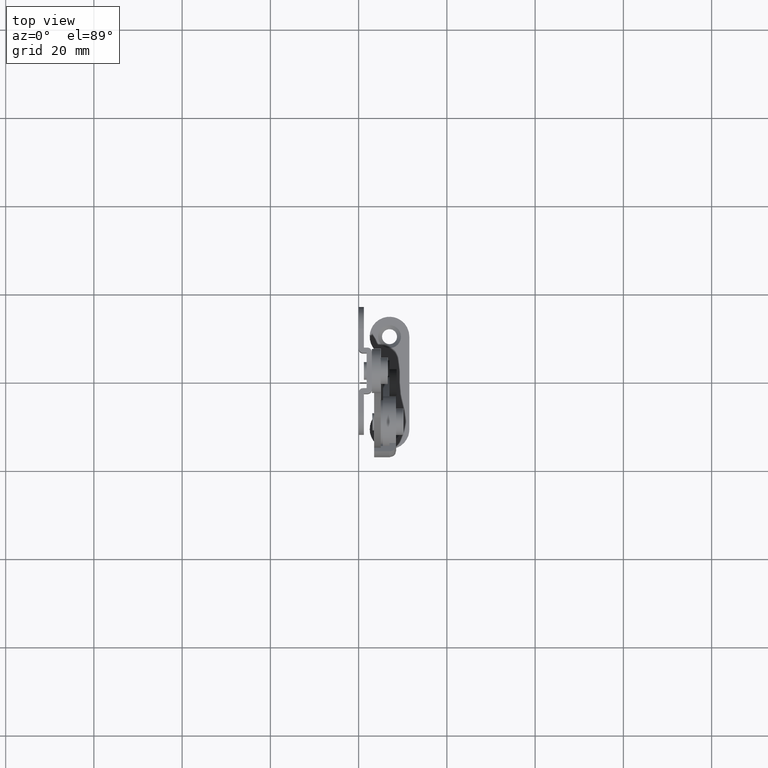
[diagram: clean part render]
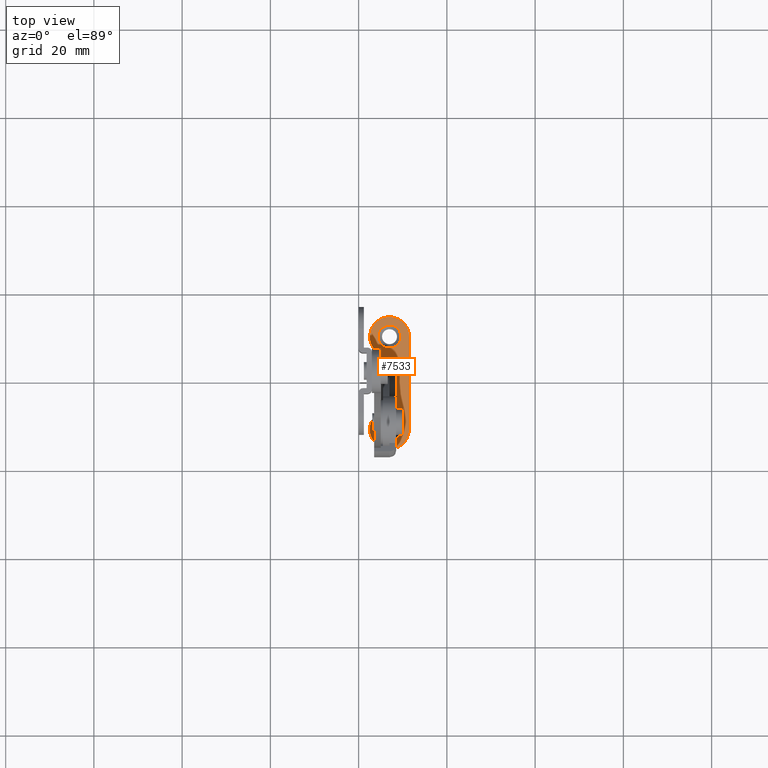
[diagram: same view with one face highlighted and labeled with its STEP entity id]
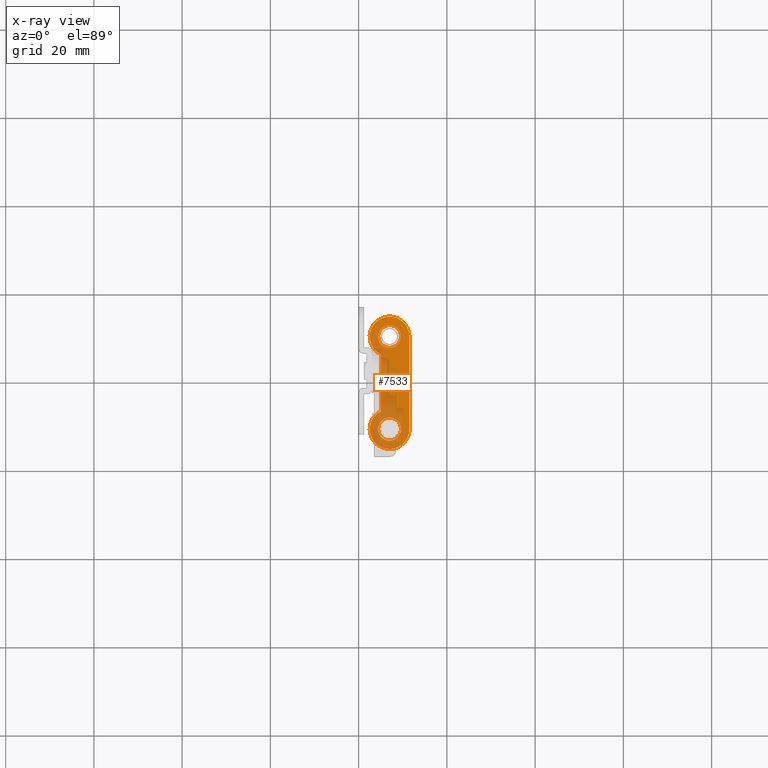
[diagram: x-ray of the same camera — body ghosted, the highlighted face saturated]
A machine part, top view. The second image highlights one B-rep face of the part: STEP entity #7533.
The next image is the same camera in x-ray: the body ghosted, the highlighted face saturated — about 33% of this face is hidden behind the body in this view.
In plain terms, the highlighted face is a freeform B-spline surface patch.
Its self-contained STEP definition (entity closure, byte-faithful):
#6865=CARTESIAN_POINT('',(6.693110835079754,-13.081571084412721,-81.000021209715300));
#6866=VERTEX_POINT('',#6865);
#6872=CARTESIAN_POINT('',(9.600000023841675,-10.499746240037521,-81.000017079703483));
#6873=VERTEX_POINT('',#6872);
#6874=CARTESIAN_POINT('',(6.693110835079754,-13.081571084412722,-81.000021209715300));
#6875=CARTESIAN_POINT('',(6.846017142205644,-13.099746263875751,-81.000021309014500));
#6876=CARTESIAN_POINT('',(7.0,-13.099746263875760,-81.000021309014500));
#6877=CARTESIAN_POINT('',(9.600000023841675,-13.099746263875755,-81.000021309014500));
#6878=CARTESIAN_POINT('',(9.600000023841675,-10.499746240037521,-81.000017079703483));
#6886=(BOUNDED_CURVE()B_SPLINE_CURVE(2,(#6874,#6875,#6876,#6877,#6878),.UNSPECIFIED.,.F.,.U.)B_SPLINE_CURVE_WITH_KNOTS((3,2,3),(0.229562454693938,0.250000000000000,0.500000000000000),.UNSPECIFIED.)CURVE()GEOMETRIC_REPRESENTATION_ITEM()RATIONAL_B_SPLINE_CURVE((0.956026717296575,0.976055926282647,1.0,0.707106781186547,1.0))REPRESENTATION_ITEM(''));
#6887=EDGE_CURVE('',#6866,#6873,#6886,.T.);
#6889=CARTESIAN_POINT('',(7.158726204612096,-7.904595740321740,-81.000012858233546));
#6890=VERTEX_POINT('',#6889);
#6891=CARTESIAN_POINT('',(9.600000023841675,-10.499746240037521,-81.000017079703483));
#6892=CARTESIAN_POINT('',(9.600000023841675,-8.053910444343590,-81.000013101164981));
#6893=CARTESIAN_POINT('',(7.158726204612096,-7.904595740321740,-81.000012858233546));
#6901=(BOUNDED_CURVE()B_SPLINE_CURVE(2,(#6891,#6892,#6893),.UNSPECIFIED.,.F.,.U.)B_SPLINE_CURVE_WITH_KNOTS((3,3),(0.500000000000000,0.739332962193688),.UNSPECIFIED.)CURVE()GEOMETRIC_REPRESENTATION_ITEM()RATIONAL_B_SPLINE_CURVE((1.0,0.719603993339730,0.976072041569728))REPRESENTATION_ITEM(''));
#6902=EDGE_CURVE('',#6873,#6890,#6901,.T.);
#6936=CARTESIAN_POINT('',(4.399999976158326,-10.499746240037521,-81.000017079703483));
#6937=VERTEX_POINT('',#6936);
#6938=CARTESIAN_POINT('',(7.158726204612096,-7.904595740321740,-81.000012858233546));
#6939=CARTESIAN_POINT('',(7.079437185668851,-7.899746216199285,-81.000012850392480));
#6940=CARTESIAN_POINT('',(7.0,-7.899746216199285,-81.000012850392480));
#6941=CARTESIAN_POINT('',(4.399999976158327,-7.899746216199285,-81.000012850392480));
#6942=CARTESIAN_POINT('',(4.399999976158326,-10.499746240037521,-81.000017079703483));
#6950=(BOUNDED_CURVE()B_SPLINE_CURVE(2,(#6938,#6939,#6940,#6941,#6942),.UNSPECIFIED.,.F.,.U.)B_SPLINE_CURVE_WITH_KNOTS((3,2,3),(0.739332962193688,0.750000000000000,1.0),.UNSPECIFIED.)CURVE()GEOMETRIC_REPRESENTATION_ITEM()RATIONAL_B_SPLINE_CURVE((0.976072041569728,0.987502787846818,1.0,0.707106781186547,1.0))REPRESENTATION_ITEM(''));
#6951=EDGE_CURVE('',#6890,#6937,#6950,.T.);
#6953=CARTESIAN_POINT('',(4.399999976158326,-10.499746240037521,-81.000017079703483));
#6954=CARTESIAN_POINT('',(4.399999976158326,-12.808999769694079,-81.000020836069368));
#6955=CARTESIAN_POINT('',(6.693110835079754,-13.081571084412726,-81.000021209715300));
#6963=(BOUNDED_CURVE()B_SPLINE_CURVE(2,(#6953,#6954,#6955),.UNSPECIFIED.,.F.,.U.)B_SPLINE_CURVE_WITH_KNOTS((3,3),(0.0,0.229562454693938),.UNSPECIFIED.)CURVE()GEOMETRIC_REPRESENTATION_ITEM()RATIONAL_B_SPLINE_CURVE((1.0,0.731050854903901,0.956026717296575))REPRESENTATION_ITEM(''));
#6964=EDGE_CURVE('',#6937,#6866,#6963,.T.);
#7209=CARTESIAN_POINT('',(6.693110835079750,7.918428915559468,-80.999987049895822));
#7210=VERTEX_POINT('',#7209);
#7216=CARTESIAN_POINT('',(9.600000023841675,10.500253759934701,-80.999982919884005));
#7217=VERTEX_POINT('',#7216);
#7218=CARTESIAN_POINT('',(6.693110835079750,7.918428915559468,-80.999987049895822));
#7219=CARTESIAN_POINT('',(6.846017142205644,7.900253736096468,-80.999987149195007));
#7220=CARTESIAN_POINT('',(7.0,7.900253736096467,-80.999987149195007));
#7221=CARTESIAN_POINT('',(9.600000023841675,7.900253736096466,-80.999987149195007));
#7222=CARTESIAN_POINT('',(9.600000023841675,10.500253759934701,-80.999982919884005));
#7230=(BOUNDED_CURVE()B_SPLINE_CURVE(2,(#7218,#7219,#7220,#7221,#7222),.UNSPECIFIED.,.F.,.U.)B_SPLINE_CURVE_WITH_KNOTS((3,2,3),(0.229562454693938,0.250000000000000,0.500000000000000),.UNSPECIFIED.)CURVE()GEOMETRIC_REPRESENTATION_ITEM()RATIONAL_B_SPLINE_CURVE((0.956026717296575,0.976055926282647,1.0,0.707106781186547,1.0))REPRESENTATION_ITEM(''));
#7231=EDGE_CURVE('',#7210,#7217,#7230,.T.);
#7233=CARTESIAN_POINT('',(7.158726204612099,13.095404259650520,-80.999978698414083));
#7234=VERTEX_POINT('',#7233);
#7235=CARTESIAN_POINT('',(9.600000023841675,10.500253759934701,-80.999982919884005));
#7236=CARTESIAN_POINT('',(9.600000023841675,12.946089555628632,-80.999978941345475));
#7237=CARTESIAN_POINT('',(7.158726204612099,13.095404259650518,-80.999978698414083));
#7245=(BOUNDED_CURVE()B_SPLINE_CURVE(2,(#7235,#7236,#7237),.UNSPECIFIED.,.F.,.U.)B_SPLINE_CURVE_WITH_KNOTS((3,3),(0.500000000000000,0.739332962193688),.UNSPECIFIED.)CURVE()GEOMETRIC_REPRESENTATION_ITEM()RATIONAL_B_SPLINE_CURVE((1.0,0.719603993339730,0.976072041569728))REPRESENTATION_ITEM(''));
#7246=EDGE_CURVE('',#7217,#7234,#7245,.T.);
#7280=CARTESIAN_POINT('',(4.399999976158326,10.500253759934701,-80.999982919884005));
#7281=VERTEX_POINT('',#7280);
#7282=CARTESIAN_POINT('',(7.158726204612099,13.095404259650515,-80.999978698414083));
#7283=CARTESIAN_POINT('',(7.079437185668852,13.100253783772935,-80.999978690572988));
#7284=CARTESIAN_POINT('',(7.0,13.100253783772940,-80.999978690572988));
#7285=CARTESIAN_POINT('',(4.399999976158327,13.100253783772935,-80.999978690572988));
#7286=CARTESIAN_POINT('',(4.399999976158326,10.500253759934701,-80.999982919884005));
#7294=(BOUNDED_CURVE()B_SPLINE_CURVE(2,(#7282,#7283,#7284,#7285,#7286),.UNSPECIFIED.,.F.,.U.)B_SPLINE_CURVE_WITH_KNOTS((3,2,3),(0.739332962193688,0.750000000000000,1.0),.UNSPECIFIED.)CURVE()GEOMETRIC_REPRESENTATION_ITEM()RATIONAL_B_SPLINE_CURVE((0.976072041569728,0.987502787846818,1.0,0.707106781186547,1.0))REPRESENTATION_ITEM(''));
#7295=EDGE_CURVE('',#7234,#7281,#7294,.T.);
#7297=CARTESIAN_POINT('',(4.399999976158326,10.500253759934701,-80.999982919884005));
#7298=CARTESIAN_POINT('',(4.399999976158326,8.191000230278140,-80.999986676249875));
#7299=CARTESIAN_POINT('',(6.693110835079750,7.918428915559468,-80.999987049895822));
#7307=(BOUNDED_CURVE()B_SPLINE_CURVE(2,(#7297,#7298,#7299),.UNSPECIFIED.,.F.,.U.)B_SPLINE_CURVE_WITH_KNOTS((3,3),(0.0,0.229562454693938),.UNSPECIFIED.)CURVE()GEOMETRIC_REPRESENTATION_ITEM()RATIONAL_B_SPLINE_CURVE((1.0,0.731050854903900,0.956026717296575))REPRESENTATION_ITEM(''));
#7308=EDGE_CURVE('',#7281,#7210,#7307,.T.);
#7448=CARTESIAN_POINT('',(2.051763999741675,-16.497292531057141,-81.000026835660549));
#7449=CARTESIAN_POINT('',(11.949487712837779,-16.497292531057141,-81.000026835660549));
#7450=CARTESIAN_POINT('',(2.051763999741675,16.498381086885718,-80.999973162981874));
#7451=CARTESIAN_POINT('',(11.949487712837779,16.498381086885718,-80.999973162981874));
#7452=B_SPLINE_SURFACE_WITH_KNOTS('',1,1,((#7448,#7450),(#7449,#7451)),.UNSPECIFIED.,.F.,.F.,.U.,(2,2),(2,2),(0.0,9.897723713096100),(0.0,32.995673617986512),.UNSPECIFIED.);
#7453=CARTESIAN_POINT('',(5.0,-4.999746240044800,-81.000008133084108));
#7454=VERTEX_POINT('',#7453);
#7455=CARTESIAN_POINT('',(5.0,-6.468038240042850,-81.000010521493095));
#7456=VERTEX_POINT('',#7455);
#7457=CARTESIAN_POINT('',(5.0,-4.999746240044800,-81.000008133084108));
#7458=CARTESIAN_POINT('',(5.0,-6.468038240042850,-81.000010521493095));
#7459=QUASI_UNIFORM_CURVE('',1,(#7457,#7458),.UNSPECIFIED.,.F.,.U.);
#7460=EDGE_CURVE('',#7454,#7456,#7459,.T.);
#7461=ORIENTED_EDGE('',*,*,#7460,.T.);
#7462=CARTESIAN_POINT('',(11.500000000000000,-10.499166240037541,-81.000017078759996));
#7463=VERTEX_POINT('',#7462);
#7464=CARTESIAN_POINT('',(5.0,-6.468038240042850,-81.000010521493095));
#7465=CARTESIAN_POINT('',(1.544656423466418,-8.182368231362990,-81.000013310121815));
#7466=CARTESIAN_POINT('',(2.710448964801383,-11.859222090516329,-81.000019291105815));
#7467=CARTESIAN_POINT('',(3.876241506136347,-15.536075949669661,-81.000025272089815));
#7468=CARTESIAN_POINT('',(7.688120753068172,-14.946242788641641,-81.000024312632931));
#7469=CARTESIAN_POINT('',(11.500000000000000,-14.356409627613617,-81.000023353176076));
#7470=CARTESIAN_POINT('',(11.500000000000000,-10.499166240037541,-81.000017078759996));
#7478=(BOUNDED_CURVE()B_SPLINE_CURVE(2,(#7464,#7465,#7466,#7467,#7468,#7469,#7470),.UNSPECIFIED.,.F.,.U.)B_SPLINE_CURVE_WITH_KNOTS((3,2,2,3),(0.0,0.333333333333333,0.666666666666667,1.0),.UNSPECIFIED.)CURVE()GEOMETRIC_REPRESENTATION_ITEM()RATIONAL_B_SPLINE_CURVE((1.0,0.759248221237310,1.0,0.759248221237310,1.0,0.759248221237310,1.0))REPRESENTATION_ITEM(''));
#7479=EDGE_CURVE('',#7456,#7463,#7478,.T.);
#7480=ORIENTED_EDGE('',*,*,#7479,.T.);
#7481=CARTESIAN_POINT('',(11.500000000000000,10.500253053076360,-80.999982919885213));
#7482=VERTEX_POINT('',#7481);
#7483=CARTESIAN_POINT('',(11.500000000000000,-10.499166240037541,-81.000017078759996));
#7484=CARTESIAN_POINT('',(11.500000000000000,10.500253053076360,-80.999982919885213));
#7485=QUASI_UNIFORM_CURVE('',1,(#7483,#7484),.UNSPECIFIED.,.F.,.U.);
#7486=EDGE_CURVE('',#7463,#7482,#7485,.T.);
#7487=ORIENTED_EDGE('',*,*,#7486,.T.);
#7488=CARTESIAN_POINT('',(4.999999504777910,6.469125131489760,-80.999989477151999));
#7489=VERTEX_POINT('',#7488);
#7490=CARTESIAN_POINT('',(11.499999999999950,10.500253053076360,-80.999982919885156));
#7491=CARTESIAN_POINT('',(11.500000605894339,14.357496597514542,-80.999976645468820));
#7492=CARTESIAN_POINT('',(7.688121272891398,14.947330228103651,-80.999975686011183));
#7493=CARTESIAN_POINT('',(3.876241939888458,15.537163858692752,-80.999974726553560));
#7494=CARTESIAN_POINT('',(2.710449069120903,11.860309939432220,-80.999980707537645));
#7495=CARTESIAN_POINT('',(1.544656198353350,8.183456020171683,-80.999986688521730));
#7496=CARTESIAN_POINT('',(4.999999504777912,6.469125131489759,-80.999989477151914));
#7504=(BOUNDED_CURVE()B_SPLINE_CURVE(2,(#7490,#7491,#7492,#7493,#7494,#7495,#7496),.UNSPECIFIED.,.F.,.U.)B_SPLINE_CURVE_WITH_KNOTS((3,2,2,3),(0.0,0.333333333333333,0.666666666666667,1.0),.UNSPECIFIED.)CURVE()GEOMETRIC_REPRESENTATION_ITEM()RATIONAL_B_SPLINE_CURVE((1.0,0.759248208159906,1.0,0.759248208159906,1.0,0.759248208159906,1.0))REPRESENTATION_ITEM(''));
#7505=EDGE_CURVE('',#7482,#7489,#7504,.T.);
#7506=ORIENTED_EDGE('',*,*,#7505,.T.);
#7507=CARTESIAN_POINT('',(5.0,5.000253759941980,-80.999991866503407));
#7508=VERTEX_POINT('',#7507);
#7509=CARTESIAN_POINT('',(4.999999504777910,6.469125131489760,-80.999989477151999));
#7510=CARTESIAN_POINT('',(5.0,5.000253759941980,-80.999991866503407));
#7511=QUASI_UNIFORM_CURVE('',1,(#7509,#7510),.UNSPECIFIED.,.F.,.U.);
#7512=EDGE_CURVE('',#7489,#7508,#7511,.T.);
#7513=ORIENTED_EDGE('',*,*,#7512,.T.);
#7514=CARTESIAN_POINT('',(5.0,-4.999746240044800,-81.000008133084108));
#7515=CARTESIAN_POINT('',(5.0,5.000253759941980,-80.999991866503407));
#7516=QUASI_UNIFORM_CURVE('',1,(#7514,#7515),.UNSPECIFIED.,.F.,.U.);
#7517=EDGE_CURVE('',#7454,#7508,#7516,.T.);
#7518=ORIENTED_EDGE('',*,*,#7517,.F.);
#7519=EDGE_LOOP('',(#7461,#7480,#7487,#7506,#7513,#7518));
#7520=FACE_OUTER_BOUND('',#7519,.T.);
#7521=ORIENTED_EDGE('',*,*,#7246,.F.);
#7522=ORIENTED_EDGE('',*,*,#7231,.F.);
#7523=ORIENTED_EDGE('',*,*,#7308,.F.);
#7524=ORIENTED_EDGE('',*,*,#7295,.F.);
#7525=EDGE_LOOP('',(#7521,#7522,#7523,#7524));
#7526=FACE_BOUND('',#7525,.T.);
#7527=ORIENTED_EDGE('',*,*,#6902,.F.);
#7528=ORIENTED_EDGE('',*,*,#6887,.F.);
#7529=ORIENTED_EDGE('',*,*,#6964,.F.);
#7530=ORIENTED_EDGE('',*,*,#6951,.F.);
#7531=EDGE_LOOP('',(#7527,#7528,#7529,#7530));
#7532=FACE_BOUND('',#7531,.T.);
#7533=ADVANCED_FACE('',(#7520,#7526,#7532),#7452,.T.);